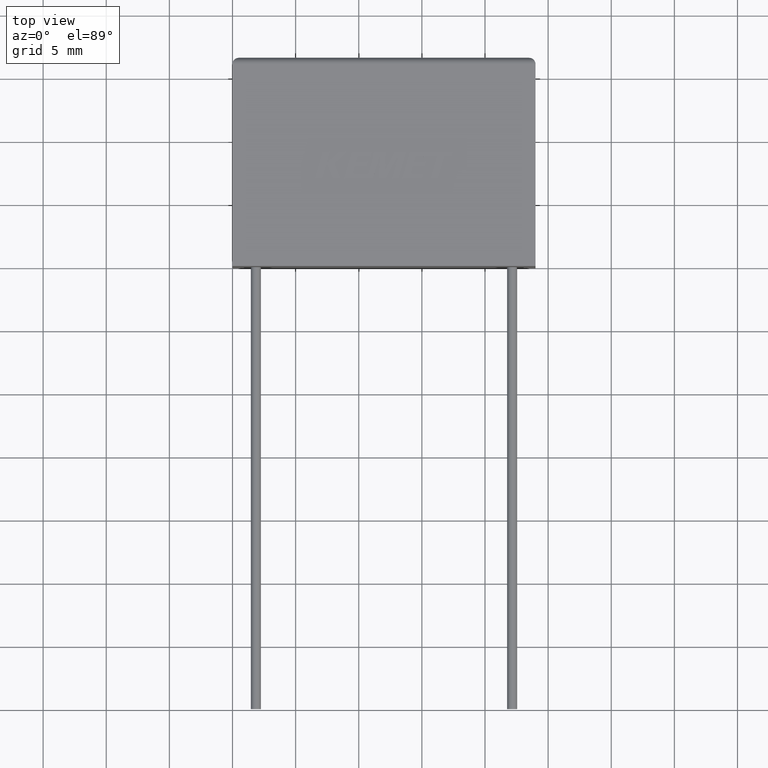
[diagram: clean part render]
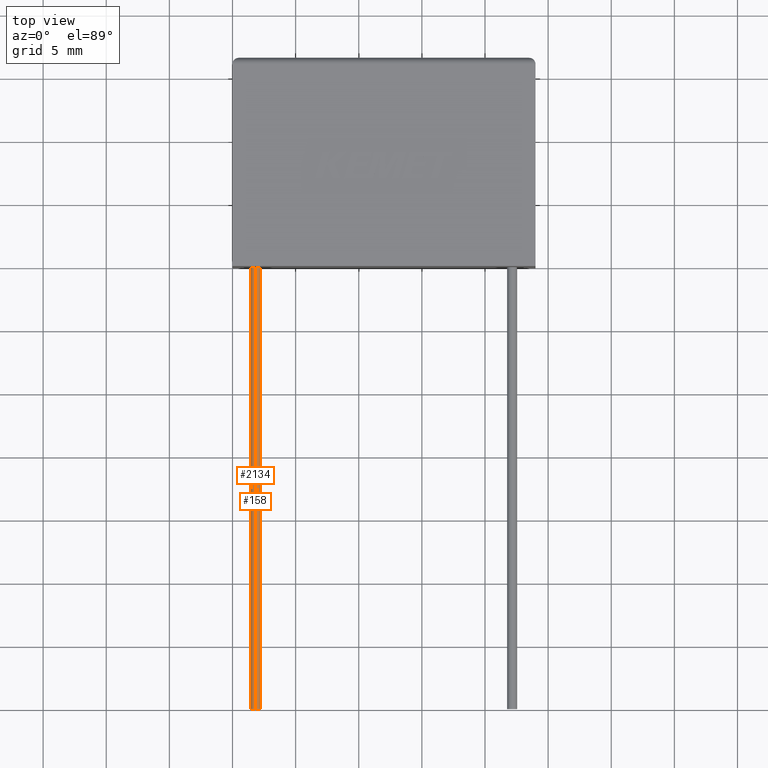
[diagram: same view with one multi-face feature highlighted, each face labeled with its STEP entity id]
A machine part, top view. The highlighted faces form ONE feature: a constant-radius fillet chain: 2 tangent blend faces with common blend radius 0.4 mm. The faces share edges in the B-rep.
Their STEP definitions:
[1] entity #2134 (Cylinder):
#72 = CIRCLE ( 'NONE', #530, 0.4000000000000001900 ) ;
#91 = VERTEX_POINT ( 'NONE', #826 ) ;
#97 = ORIENTED_EDGE ( 'NONE', *, *, #1338, .F. ) ;
#100 = CIRCLE ( 'NONE', #1797, 0.4000000000000001900 ) ;
#195 = CARTESIAN_POINT ( 'NONE',  ( 1.849999999999999200, -35.00000000000000000, 5.250000000000000000 ) ) ;
#210 = DIRECTION ( 'NONE',  ( 0.0000000000000000000, -1.000000000000000000, 0.0000000000000000000 ) ) ;
#344 = LINE ( 'NONE', #195, #1404 ) ;
#369 = CARTESIAN_POINT ( 'NONE',  ( 1.849999999999999200, 0.0000000000000000000, 5.650000000000000400 ) ) ;
#385 = DIRECTION ( 'NONE',  ( 0.0000000000000000000, 0.0000000000000000000, 1.000000000000000000 ) ) ;
#482 = ORIENTED_EDGE ( 'NONE', *, *, #2429, .T. ) ;
#530 = AXIS2_PLACEMENT_3D ( 'NONE', #369, #1536, #1919 ) ;
#598 = CARTESIAN_POINT ( 'NONE',  ( 1.849999999999999200, -35.00000000000000000, 5.650000000000000400 ) ) ;
#637 = ORIENTED_EDGE ( 'NONE', *, *, #706, .F. ) ;
#706 = EDGE_CURVE ( 'NONE', #1706, #2419, #344, .T. ) ;
#825 = EDGE_LOOP ( 'NONE', ( #637, #97, #482, #2041 ) ) ;
#826 = CARTESIAN_POINT ( 'NONE',  ( 1.849999999999999200, -35.00000000000000000, 6.050000000000000700 ) ) ;
#1007 = CARTESIAN_POINT ( 'NONE',  ( 1.849999999999999200, -35.00000000000000000, 5.250000000000000000 ) ) ;
#1164 = DIRECTION ( 'NONE',  ( -0.0000000000000000000, 1.000000000000000000, -0.0000000000000000000 ) ) ;
#1179 = CARTESIAN_POINT ( 'NONE',  ( 1.849999999999999200, -35.00000000000000000, 5.650000000000000400 ) ) ;
#1204 = DIRECTION ( 'NONE',  ( -0.0000000000000000000, 1.000000000000000000, -0.0000000000000000000 ) ) ;
#1256 = EDGE_CURVE ( 'NONE', #2455, #2419, #72, .T. ) ;
#1301 = CYLINDRICAL_SURFACE ( 'NONE', #2232, 0.4000000000000001900 ) ;
#1338 = EDGE_CURVE ( 'NONE', #91, #1706, #100, .T. ) ;
#1349 = DIRECTION ( 'NONE',  ( -0.0000000000000000000, 1.000000000000000000, -0.0000000000000000000 ) ) ;
#1404 = VECTOR ( 'NONE', #1204, 1000.000000000000000 ) ;
#1536 = DIRECTION ( 'NONE',  ( -0.0000000000000000000, -1.000000000000000000, -0.0000000000000000000 ) ) ;
#1537 = CARTESIAN_POINT ( 'NONE',  ( 1.849999999999999200, -35.00000000000000000, 6.050000000000000700 ) ) ;
#1546 = CARTESIAN_POINT ( 'NONE',  ( 1.849999999999999200, 0.0000000000000000000, 5.250000000000000000 ) ) ;
#1565 = FACE_OUTER_BOUND ( 'NONE', #825, .T. ) ;
#1706 = VERTEX_POINT ( 'NONE', #1007 ) ;
#1797 = AXIS2_PLACEMENT_3D ( 'NONE', #1179, #210, #1926 ) ;
#1870 = LINE ( 'NONE', #1537, #2480 ) ;
#1919 = DIRECTION ( 'NONE',  ( 0.0000000000000000000, 0.0000000000000000000, 1.000000000000000000 ) ) ;
#1926 = DIRECTION ( 'NONE',  ( 0.0000000000000000000, 0.0000000000000000000, -1.000000000000000000 ) ) ;
#2041 = ORIENTED_EDGE ( 'NONE', *, *, #1256, .T. ) ;
#2134 = ADVANCED_FACE ( 'NONE', ( #1565 ), #1301, .T. ) ;
#2232 = AXIS2_PLACEMENT_3D ( 'NONE', #598, #1349, #385 ) ;
#2287 = CARTESIAN_POINT ( 'NONE',  ( 1.849999999999999200, 0.0000000000000000000, 6.050000000000000700 ) ) ;
#2419 = VERTEX_POINT ( 'NONE', #1546 ) ;
#2429 = EDGE_CURVE ( 'NONE', #91, #2455, #1870, .T. ) ;
#2455 = VERTEX_POINT ( 'NONE', #2287 ) ;
#2480 = VECTOR ( 'NONE', #1164, 1000.000000000000000 ) ;
[2] entity #158 (Cylinder):
#7 = DIRECTION ( 'NONE',  ( -0.0000000000000000000, -1.000000000000000000, -0.0000000000000000000 ) ) ;
#91 = VERTEX_POINT ( 'NONE', #826 ) ;
#158 = ADVANCED_FACE ( 'NONE', ( #1766 ), #1377, .T. ) ;
#195 = CARTESIAN_POINT ( 'NONE',  ( 1.849999999999999200, -35.00000000000000000, 5.250000000000000000 ) ) ;
#198 = DIRECTION ( 'NONE',  ( 0.0000000000000000000, 0.0000000000000000000, 1.000000000000000000 ) ) ;
#266 = DIRECTION ( 'NONE',  ( -0.0000000000000000000, 1.000000000000000000, -0.0000000000000000000 ) ) ;
#325 = AXIS2_PLACEMENT_3D ( 'NONE', #372, #1157, #970 ) ;
#344 = LINE ( 'NONE', #195, #1404 ) ;
#372 = CARTESIAN_POINT ( 'NONE',  ( 1.849999999999999200, -35.00000000000000000, 5.650000000000000400 ) ) ;
#424 = ORIENTED_EDGE ( 'NONE', *, *, #706, .T. ) ;
#706 = EDGE_CURVE ( 'NONE', #1706, #2419, #344, .T. ) ;
#710 = AXIS2_PLACEMENT_3D ( 'NONE', #952, #7, #198 ) ;
#826 = CARTESIAN_POINT ( 'NONE',  ( 1.849999999999999200, -35.00000000000000000, 6.050000000000000700 ) ) ;
#913 = CIRCLE ( 'NONE', #325, 0.4000000000000001900 ) ;
#952 = CARTESIAN_POINT ( 'NONE',  ( 1.849999999999999200, 0.0000000000000000000, 5.650000000000000400 ) ) ;
#970 = DIRECTION ( 'NONE',  ( 0.0000000000000000000, 0.0000000000000000000, -1.000000000000000000 ) ) ;
#1007 = CARTESIAN_POINT ( 'NONE',  ( 1.849999999999999200, -35.00000000000000000, 5.250000000000000000 ) ) ;
#1157 = DIRECTION ( 'NONE',  ( 0.0000000000000000000, -1.000000000000000000, 0.0000000000000000000 ) ) ;
#1164 = DIRECTION ( 'NONE',  ( -0.0000000000000000000, 1.000000000000000000, -0.0000000000000000000 ) ) ;
#1204 = DIRECTION ( 'NONE',  ( -0.0000000000000000000, 1.000000000000000000, -0.0000000000000000000 ) ) ;
#1237 = CARTESIAN_POINT ( 'NONE',  ( 1.849999999999999200, -35.00000000000000000, 5.650000000000000400 ) ) ;
#1243 = DIRECTION ( 'NONE',  ( 0.0000000000000000000, 0.0000000000000000000, 1.000000000000000000 ) ) ;
#1377 = CYLINDRICAL_SURFACE ( 'NONE', #1862, 0.4000000000000001900 ) ;
#1398 = ORIENTED_EDGE ( 'NONE', *, *, #2429, .F. ) ;
#1404 = VECTOR ( 'NONE', #1204, 1000.000000000000000 ) ;
#1537 = CARTESIAN_POINT ( 'NONE',  ( 1.849999999999999200, -35.00000000000000000, 6.050000000000000700 ) ) ;
#1546 = CARTESIAN_POINT ( 'NONE',  ( 1.849999999999999200, 0.0000000000000000000, 5.250000000000000000 ) ) ;
#1706 = VERTEX_POINT ( 'NONE', #1007 ) ;
#1718 = CIRCLE ( 'NONE', #710, 0.4000000000000001900 ) ;
#1766 = FACE_OUTER_BOUND ( 'NONE', #2423, .T. ) ;
#1862 = AXIS2_PLACEMENT_3D ( 'NONE', #1237, #266, #1243 ) ;
#1870 = LINE ( 'NONE', #1537, #2480 ) ;
#1900 = EDGE_CURVE ( 'NONE', #1706, #91, #913, .T. ) ;
#1928 = EDGE_CURVE ( 'NONE', #2419, #2455, #1718, .T. ) ;
#2037 = ORIENTED_EDGE ( 'NONE', *, *, #1928, .T. ) ;
#2287 = CARTESIAN_POINT ( 'NONE',  ( 1.849999999999999200, 0.0000000000000000000, 6.050000000000000700 ) ) ;
#2419 = VERTEX_POINT ( 'NONE', #1546 ) ;
#2423 = EDGE_LOOP ( 'NONE', ( #2456, #424, #2037, #1398 ) ) ;
#2429 = EDGE_CURVE ( 'NONE', #91, #2455, #1870, .T. ) ;
#2455 = VERTEX_POINT ( 'NONE', #2287 ) ;
#2456 = ORIENTED_EDGE ( 'NONE', *, *, #1900, .F. ) ;
#2480 = VECTOR ( 'NONE', #1164, 1000.000000000000000 ) ;